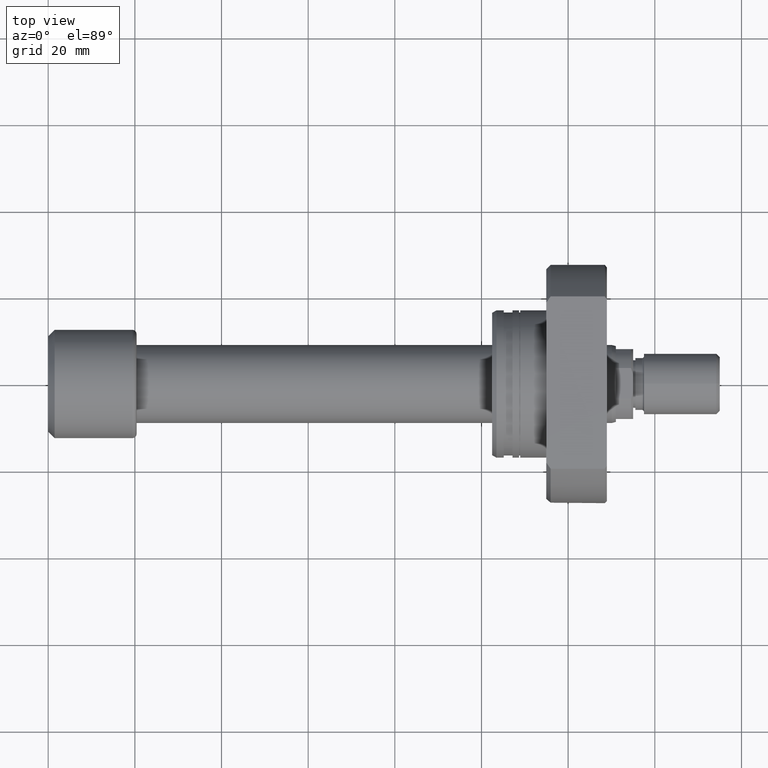
[diagram: clean part render]
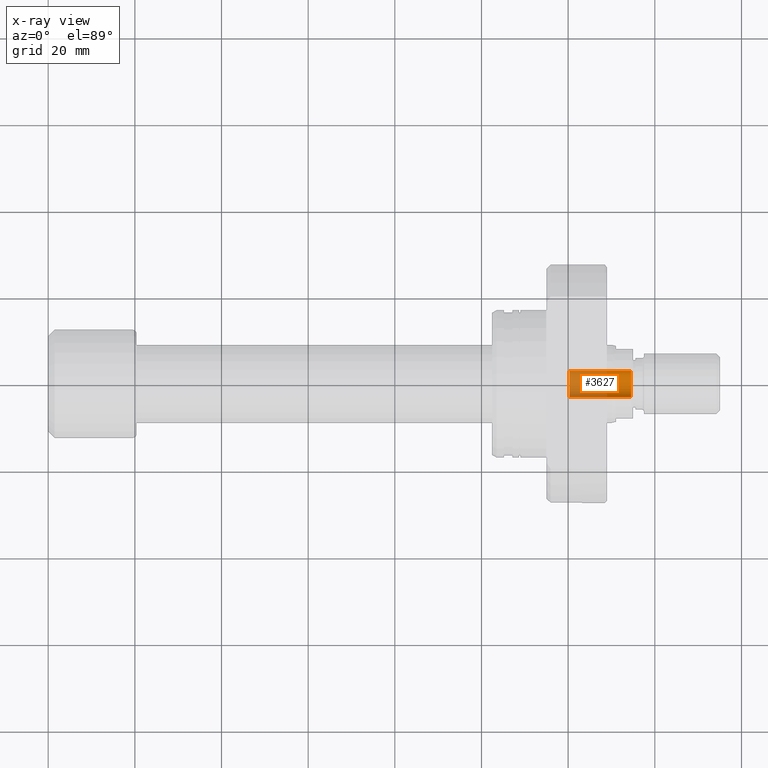
[diagram: x-ray — body ghosted, one internal face saturated and labeled with its STEP entity id]
A machine part, top view, then the same camera in x-ray: the body is ghosted and one INTERNAL B-rep face — a face not visible from any outside direction — is saturated and labeled: STEP entity #3627.
In plain terms, the highlighted cylindrical surface (edge-blend (fillet) strip) has radius 3 mm, axis along (1, -0, 0).
Its self-contained STEP definition (entity closure, byte-faithful):
#131 = CARTESIAN_POINT ( 'NONE',  ( 120.3000000000000256, 2.999999999998661071, 0.000000000000000000 ) ) ;
#247 = LINE ( 'NONE', #2510, #2340 ) ;
#275 = EDGE_CURVE ( 'NONE', #3427, #584, #972, .T. ) ;
#281 = EDGE_CURVE ( 'NONE', #584, #1500, #247, .T. ) ;
#366 = CYLINDRICAL_SURFACE ( 'NONE', #2234, 3.000000000000655032 ) ;
#404 = CARTESIAN_POINT ( 'NONE',  ( 134.5000000000000000, -3.000000000002883915, 3.673940397443006501E-16 ) ) ;
#435 = CARTESIAN_POINT ( 'NONE',  ( 120.2999999999999829, -1.993689553789153133E-12, 0.000000000000000000 ) ) ;
#491 = LINE ( 'NONE', #1351, #3542 ) ;
#584 = VERTEX_POINT ( 'NONE', #131 ) ;
#616 = ORIENTED_EDGE ( 'NONE', *, *, #281, .F. ) ;
#843 = EDGE_CURVE ( 'NONE', #3427, #3548, #491, .T. ) ;
#893 = ORIENTED_EDGE ( 'NONE', *, *, #3262, .T. ) ;
#972 = CIRCLE ( 'NONE', #3004, 3.000000000000655032 ) ;
#1086 = DIRECTION ( 'NONE',  ( -1.850371707708190232E-14, -1.000000000000000000, 0.000000000000000000 ) ) ;
#1090 = ORIENTED_EDGE ( 'NONE', *, *, #275, .F. ) ;
#1351 = CARTESIAN_POINT ( 'NONE',  ( 120.2999999999999261, -3.000000000002648548, 3.673940397442862041E-16 ) ) ;
#1388 = CARTESIAN_POINT ( 'NONE',  ( 120.2999999999999829, -1.993689553789153133E-12, 0.000000000000000000 ) ) ;
#1500 = VERTEX_POINT ( 'NONE', #3610 ) ;
#1575 = FACE_OUTER_BOUND ( 'NONE', #3500, .T. ) ;
#1618 = DIRECTION ( 'NONE',  ( 1.000000000000000000, -1.657264799492235042E-14, 0.000000000000000000 ) ) ;
#1873 = ORIENTED_EDGE ( 'NONE', *, *, #843, .T. ) ;
#1938 = DIRECTION ( 'NONE',  ( 1.850371707708190232E-14, 1.000000000000000000, 0.000000000000000000 ) ) ;
#1945 = CARTESIAN_POINT ( 'NONE',  ( 134.5000000000000568, -2.229021155317051935E-12, 0.000000000000000000 ) ) ;
#2234 = AXIS2_PLACEMENT_3D ( 'NONE', #435, #2708, #3214 ) ;
#2340 = VECTOR ( 'NONE', #2760, 1000.000000000000000 ) ;
#2510 = CARTESIAN_POINT ( 'NONE',  ( 120.3000000000000256, 2.999999999998661071, 0.000000000000000000 ) ) ;
#2579 = CARTESIAN_POINT ( 'NONE',  ( 120.2999999999999261, -3.000000000002648548, 3.673940397442862041E-16 ) ) ;
#2708 = DIRECTION ( 'NONE',  ( 1.000000000000000000, -1.657264799492230625E-14, -0.000000000000000000 ) ) ;
#2760 = DIRECTION ( 'NONE',  ( 1.000000000000000000, -1.657264799492230625E-14, -0.000000000000000000 ) ) ;
#3004 = AXIS2_PLACEMENT_3D ( 'NONE', #1388, #3327, #1938 ) ;
#3138 = AXIS2_PLACEMENT_3D ( 'NONE', #1945, #1618, #1086 ) ;
#3214 = DIRECTION ( 'NONE',  ( 1.850371707708190232E-14, 1.000000000000000000, 0.000000000000000000 ) ) ;
#3262 = EDGE_CURVE ( 'NONE', #3548, #1500, #3320, .T. ) ;
#3320 = CIRCLE ( 'NONE', #3138, 3.000000000000655032 ) ;
#3327 = DIRECTION ( 'NONE',  ( 1.000000000000000000, -1.657264799492230625E-14, 0.000000000000000000 ) ) ;
#3341 = DIRECTION ( 'NONE',  ( 1.000000000000000000, -1.657264799492230625E-14, -0.000000000000000000 ) ) ;
#3427 = VERTEX_POINT ( 'NONE', #2579 ) ;
#3500 = EDGE_LOOP ( 'NONE', ( #1090, #1873, #893, #616 ) ) ;
#3542 = VECTOR ( 'NONE', #3341, 1000.000000000000000 ) ;
#3548 = VERTEX_POINT ( 'NONE', #404 ) ;
#3610 = CARTESIAN_POINT ( 'NONE',  ( 134.5000000000001137, 2.999999999998425704, 0.000000000000000000 ) ) ;
#3627 = ADVANCED_FACE ( 'NONE', ( #1575 ), #366, .F. ) ;